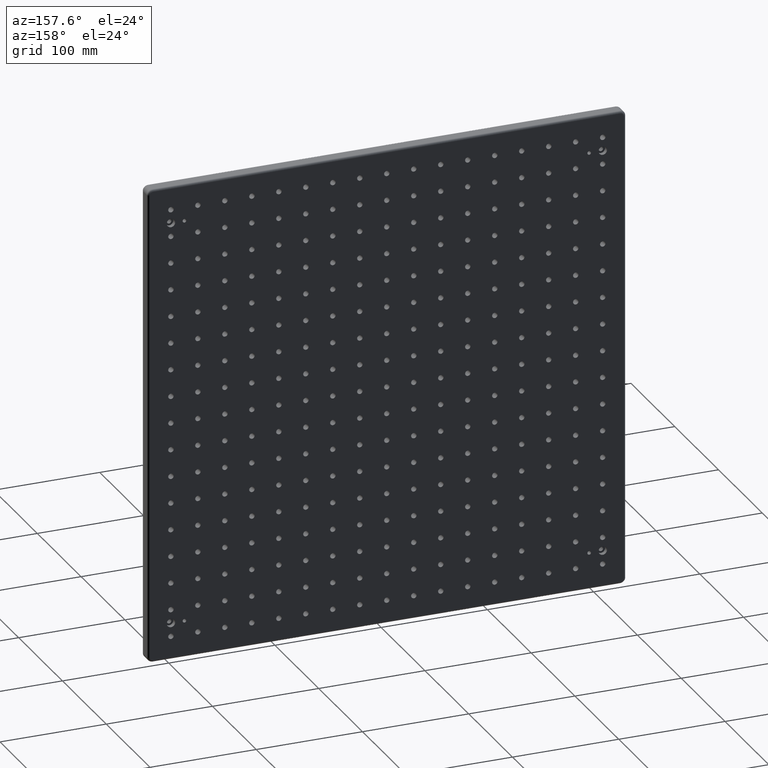
[diagram: clean part render]
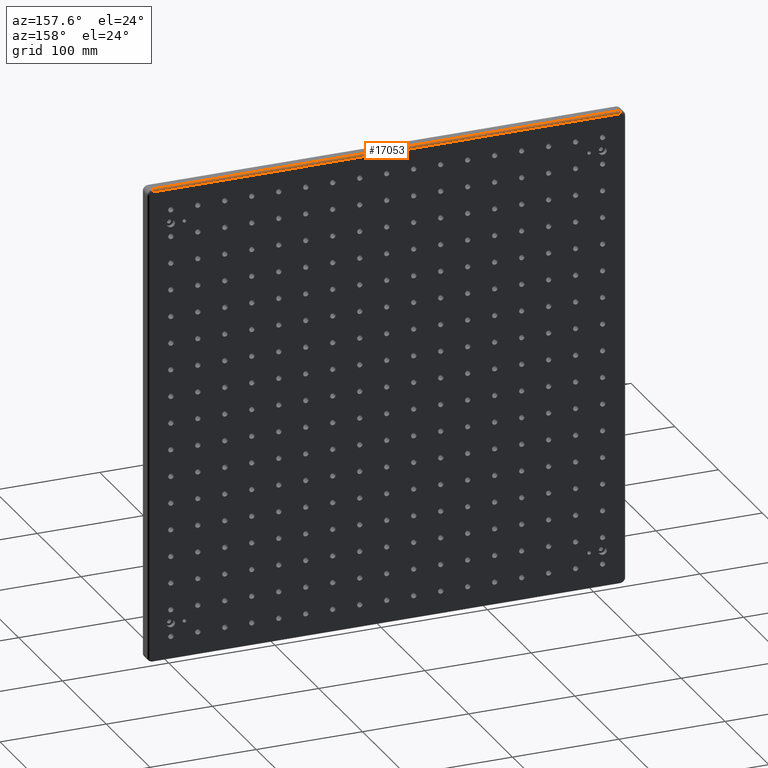
[diagram: same view with one face highlighted and labeled with its STEP entity id]
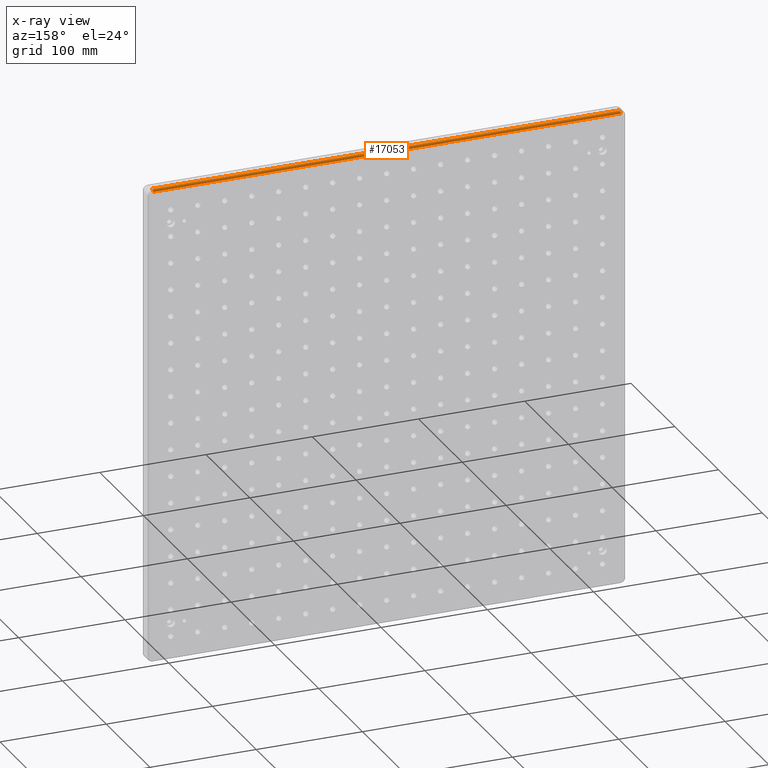
[diagram: x-ray of the same camera — body ghosted, the highlighted face saturated]
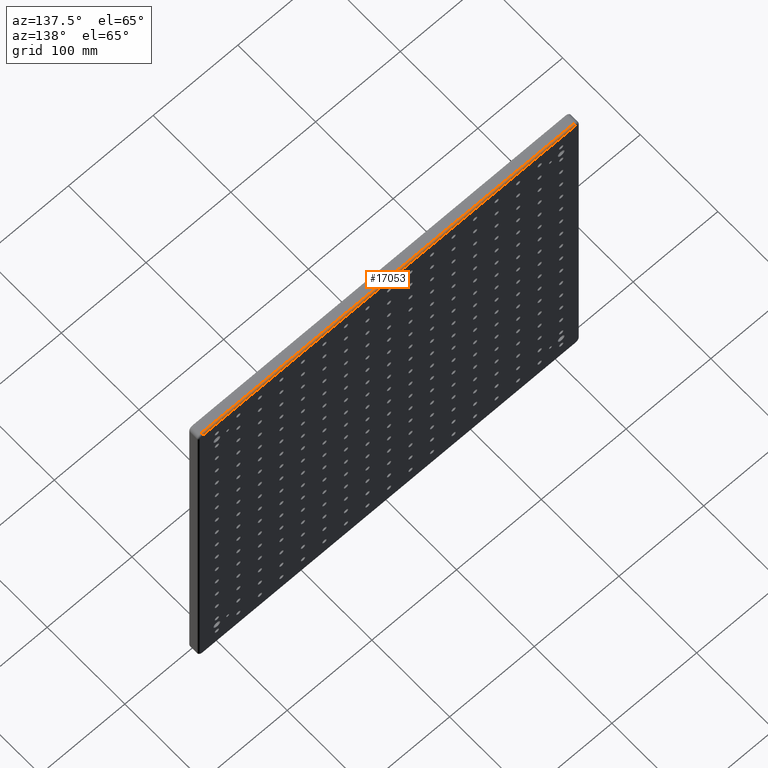
[diagram: same view with one face highlighted and labeled with its STEP entity id]
A machine part, auxiliary view. The second image highlights one B-rep face of the part: STEP entity #17053.
The next image is the same camera in x-ray: the body ghosted, the highlighted face saturated — about 0% of this face is hidden behind the body in this view.
A second angle (auxiliary view) of the same face is appended — the face is thin or edge-on in the first view.
In plain terms, the highlighted cylindrical surface (edge-blend (fillet) strip) has radius 2 mm, axis along (-1, 0, 0).
Its self-contained STEP definition (entity closure, byte-faithful):
#126 = CIRCLE ( 'NONE', #12220, 2.000000000000001800 ) ;
#271 = LINE ( 'NONE', #15366, #5233 ) ;
#1749 = ORIENTED_EDGE ( 'NONE', *, *, #12349, .T. ) ;
#2470 = DIRECTION ( 'NONE',  ( 0.0000000000000000000, 0.0000000000000000000, 1.000000000000000000 ) ) ;
#2493 = CARTESIAN_POINT ( 'NONE',  ( 220.0000000000000300, 13.00000000000000000, 222.9999999999999400 ) ) ;
#5233 = VECTOR ( 'NONE', #6403, 1000.000000000000000 ) ;
#6403 = DIRECTION ( 'NONE',  ( -1.000000000000000000, -0.0000000000000000000, -0.0000000000000000000 ) ) ;
#7224 = VERTEX_POINT ( 'NONE', #7869 ) ;
#7869 = CARTESIAN_POINT ( 'NONE',  ( -220.0000000000000300, 11.00000000000000000, 224.9999999999999700 ) ) ;
#9446 = AXIS2_PLACEMENT_3D ( 'NONE', #15079, #20444, #2470 ) ;
#10855 = FACE_OUTER_BOUND ( 'NONE', #12209, .T. ) ;
#11351 = VECTOR ( 'NONE', #13088, 1000.000000000000000 ) ;
#12209 = EDGE_LOOP ( 'NONE', ( #1749, #20055, #15083, #21984 ) ) ;
#12220 = AXIS2_PLACEMENT_3D ( 'NONE', #18836, #20772, #13619 ) ;
#12349 = EDGE_CURVE ( 'NONE', #21189, #13172, #18072, .T. ) ;
#12488 = CARTESIAN_POINT ( 'NONE',  ( 220.0000000000000300, 13.00000000000000000, 222.9999999999999400 ) ) ;
#13088 = DIRECTION ( 'NONE',  ( 1.000000000000000000, -0.0000000000000000000, 0.0000000000000000000 ) ) ;
#13172 = VERTEX_POINT ( 'NONE', #12488 ) ;
#13353 = EDGE_CURVE ( 'NONE', #21189, #7224, #271, .T. ) ;
#13619 = DIRECTION ( 'NONE',  ( 0.0000000000000000000, 0.0000000000000000000, 1.000000000000000000 ) ) ;
#13697 = CARTESIAN_POINT ( 'NONE',  ( 220.0000000000000300, 11.00000000000000000, 224.9999999999999100 ) ) ;
#13835 = EDGE_CURVE ( 'NONE', #15161, #13172, #14688, .T. ) ;
#13972 = CARTESIAN_POINT ( 'NONE',  ( -220.0000000000000300, 13.00000000000000000, 222.9999999999999400 ) ) ;
#14688 = LINE ( 'NONE', #2493, #11351 ) ;
#14747 = AXIS2_PLACEMENT_3D ( 'NONE', #14935, #22097, #21786 ) ;
#14935 = CARTESIAN_POINT ( 'NONE',  ( -220.0000000000000300, 11.00000000000000000, 222.9999999999999400 ) ) ;
#15079 = CARTESIAN_POINT ( 'NONE',  ( 220.0000000000000300, 11.00000000000000000, 222.9999999999999100 ) ) ;
#15083 = ORIENTED_EDGE ( 'NONE', *, *, #21255, .F. ) ;
#15161 = VERTEX_POINT ( 'NONE', #13972 ) ;
#15366 = CARTESIAN_POINT ( 'NONE',  ( -220.0000000000000300, 11.00000000000000000, 224.9999999999999700 ) ) ;
#17053 = ADVANCED_FACE ( 'NONE', ( #10855 ), #21128, .T. ) ;
#18072 = CIRCLE ( 'NONE', #9446, 2.000000000000001800 ) ;
#18836 = CARTESIAN_POINT ( 'NONE',  ( -220.0000000000000300, 11.00000000000000000, 222.9999999999999700 ) ) ;
#20055 = ORIENTED_EDGE ( 'NONE', *, *, #13835, .F. ) ;
#20444 = DIRECTION ( 'NONE',  ( -1.000000000000000000, 0.0000000000000000000, 0.0000000000000000000 ) ) ;
#20772 = DIRECTION ( 'NONE',  ( -1.000000000000000000, 0.0000000000000000000, 0.0000000000000000000 ) ) ;
#21128 = CYLINDRICAL_SURFACE ( 'NONE', #14747, 2.000000000000001800 ) ;
#21189 = VERTEX_POINT ( 'NONE', #13697 ) ;
#21255 = EDGE_CURVE ( 'NONE', #7224, #15161, #126, .T. ) ;
#21786 = DIRECTION ( 'NONE',  ( 0.0000000000000000000, 0.0000000000000000000, 1.000000000000000000 ) ) ;
#21984 = ORIENTED_EDGE ( 'NONE', *, *, #13353, .F. ) ;
#22097 = DIRECTION ( 'NONE',  ( -1.000000000000000000, 0.0000000000000000000, 0.0000000000000000000 ) ) ;